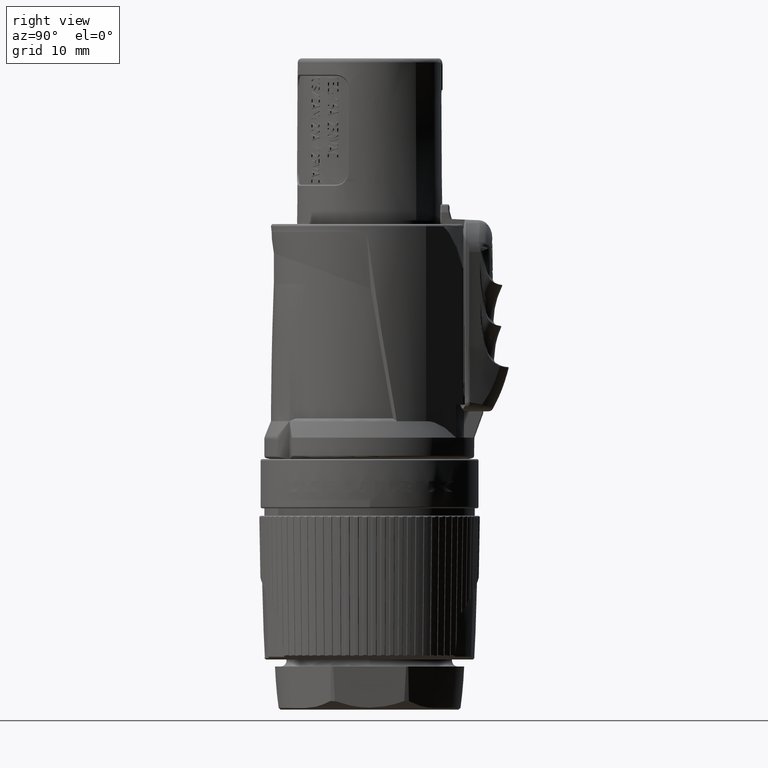
[diagram: clean part render]
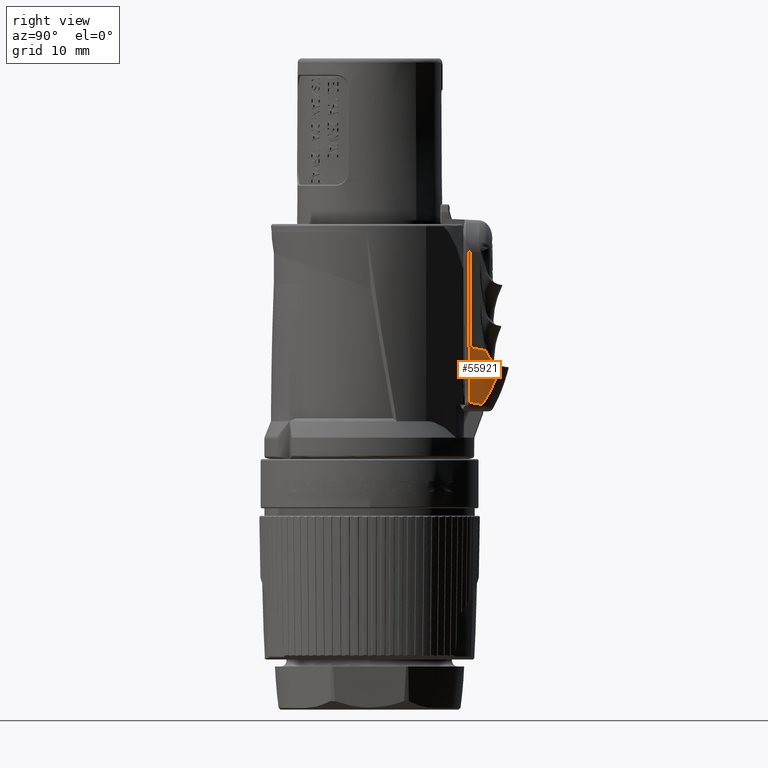
[diagram: same view with one face highlighted and labeled with its STEP entity id]
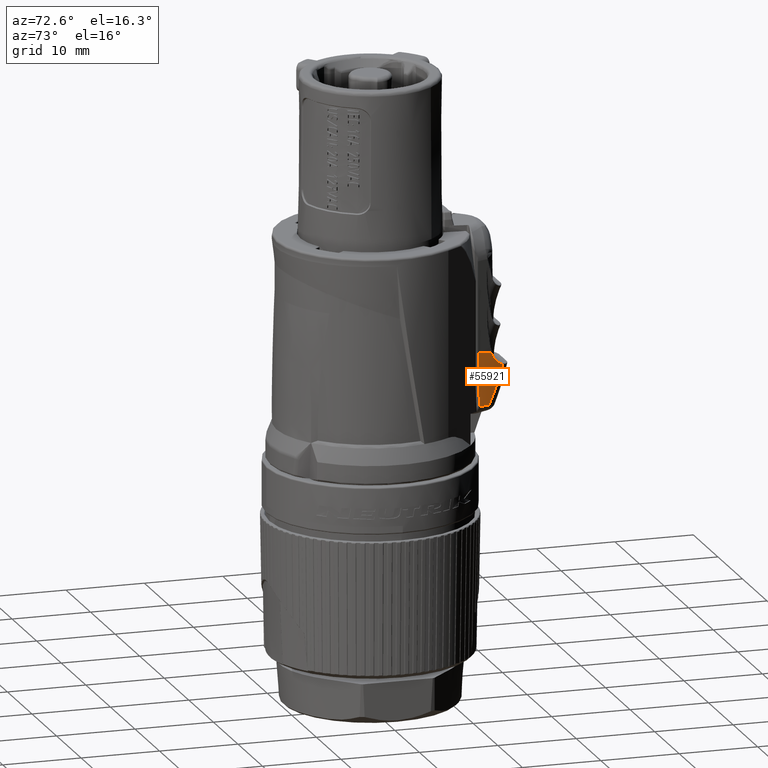
[diagram: same view with one face highlighted and labeled with its STEP entity id]
A machine part, right view. The second image highlights one B-rep face of the part: STEP entity #55921.
A second angle (auxiliary view) of the same face is appended — the face is thin or edge-on in the first view.
In plain terms, the highlighted face is a freeform B-spline surface patch.
Its self-contained STEP definition (entity closure, byte-faithful):
#8972=CARTESIAN_POINT('',(5.137454435527E0,1.218043449051E1,2.828305651661E1));
#8973=CARTESIAN_POINT('',(5.032625257022E0,1.240478277706E1,2.823575987312E1));
#8974=CARTESIAN_POINT('',(4.823507306549E0,1.284837388219E1,2.814309061550E1));
#8975=CARTESIAN_POINT('',(4.528597723349E0,1.346463573722E1,2.801603205721E1));
#8976=CARTESIAN_POINT('',(4.312379997283E0,1.391025584645E1,2.792694888665E1));
#8977=CARTESIAN_POINT('',(4.201611974812E0,1.413675192937E1,2.788168511465E1));
#8979=CARTESIAN_POINT('',(4.201611974812E0,1.413675192937E1,2.788168511465E1));
#8980=CARTESIAN_POINT('',(4.170627954426E0,1.418489630986E1,2.773186646039E1));
#8981=CARTESIAN_POINT('',(4.101447117099E0,1.429892807351E1,2.746028612217E1));
#8982=CARTESIAN_POINT('',(3.989970513082E0,1.449047511131E1,2.713326832320E1));
#8983=CARTESIAN_POINT('',(3.875976783093E0,1.468969617786E1,2.686938387784E1));
#8984=CARTESIAN_POINT('',(3.763663672099E0,1.488737683183E1,2.665655979653E1));
#8985=CARTESIAN_POINT('',(3.655378751096E0,1.507862143851E1,2.648463868363E1));
#8986=CARTESIAN_POINT('',(3.552893713565E0,1.525999276944E1,2.634608025967E1));
#8987=CARTESIAN_POINT('',(3.456845172929E0,1.543026117711E1,2.623419367185E1));
#8988=CARTESIAN_POINT('',(3.367128336880E0,1.558958793816E1,2.614346496403E1));
#8989=CARTESIAN_POINT('',(3.283295984391E0,1.573876606117E1,2.606951144149E1));
#8990=CARTESIAN_POINT('',(3.230256874929E0,1.583337159726E1,2.602869407203E1));
#8991=CARTESIAN_POINT('',(3.204623298536E0,1.587915455899E1,2.601021241512E1));
#8993=CARTESIAN_POINT('',(3.204623298536E0,1.587915455899E1,2.601021241512E1));
#8994=CARTESIAN_POINT('',(3.213581124219E0,1.584505366982E1,2.588340318956E1));
#8995=CARTESIAN_POINT('',(3.234597608046E0,1.577423201581E1,2.563237481375E1));
#8996=CARTESIAN_POINT('',(3.275277367365E0,1.566050471906E1,2.526388454083E1));
#8997=CARTESIAN_POINT('',(3.325068005909E0,1.553934317633E1,2.490280440898E1));
#8998=CARTESIAN_POINT('',(3.383939626624E0,1.541083790349E1,2.454878009841E1));
#8999=CARTESIAN_POINT('',(3.451896321271E0,1.527503074429E1,2.420144864807E1));
#9000=CARTESIAN_POINT('',(3.528974187518E0,1.513192874512E1,2.386048280055E1));
#9001=CARTESIAN_POINT('',(3.615242437341E0,1.498150210194E1,2.352557825443E1));
#9002=CARTESIAN_POINT('',(3.710800236076E0,1.482369170631E1,2.319646907986E1));
#9003=CARTESIAN_POINT('',(3.815775845007E0,1.465841044852E1,2.287292544493E1));
#9004=CARTESIAN_POINT('',(3.930329560126E0,1.448553931071E1,2.255474398667E1));
#9005=CARTESIAN_POINT('',(4.054651327845E0,1.430493156844E1,2.224175529652E1));
#9006=CARTESIAN_POINT('',(4.188958620457E0,1.411641731279E1,2.193382853929E1));
#9007=CARTESIAN_POINT('',(4.333472817482E0,1.391983131640E1,2.163090840900E1));
#9008=CARTESIAN_POINT('',(4.436877966331E0,1.378314628828E1,2.143211697407E1));
#9009=CARTESIAN_POINT('',(4.490360090372E0,1.371340410955E1,2.133357328039E1));
#9011=CARTESIAN_POINT('',(4.490360090372E0,1.371340410955E1,2.133357328039E1));
#9012=CARTESIAN_POINT('',(4.550881939896E0,1.362149830925E1,2.135222668004E1));
#9013=CARTESIAN_POINT('',(4.673881053086E0,1.343497064355E1,2.138505773771E1));
#9014=CARTESIAN_POINT('',(4.875232013923E0,1.312988490549E1,2.143082369902E1));
#9015=CARTESIAN_POINT('',(5.056133166179E0,1.285455601999E1,2.147737359850E1));
#9016=CARTESIAN_POINT('',(5.216193454565E0,1.260933630053E1,2.152598307596E1));
#9017=CARTESIAN_POINT('',(5.358629014933E0,1.239114131899E1,2.156543413160E1));
#9018=CARTESIAN_POINT('',(5.443581219444E0,1.226184256511E1,2.158230021186E1));
#9019=CARTESIAN_POINT('',(5.483465134599E0,1.220138692596E1,2.158862640010E1));
#9021=CARTESIAN_POINT('',(5.481564126913E0,1.220076209789E1,2.160987701687E1));
#9022=CARTESIAN_POINT('',(5.481938826177E0,1.220077065566E1,2.160638775249E1));
#9023=CARTESIAN_POINT('',(5.482599345E0,1.220092782246E1,2.159936548813E1));
#9024=CARTESIAN_POINT('',(5.483206315845E0,1.220118679236E1,2.159222110348E1));
#9025=CARTESIAN_POINT('',(5.483465134599E0,1.220138692596E1,2.158862640010E1));
#9027=CARTESIAN_POINT('',(5.481564126913E0,1.220076209789E1,2.160987701687E1));
#9028=CARTESIAN_POINT('',(5.412492959283E0,1.219923087520E1,2.225280989920E1));
#9029=CARTESIAN_POINT('',(5.288525488787E0,1.219577780597E1,2.360436967145E1));
#9030=CARTESIAN_POINT('',(5.164212534124E0,1.218926873095E1,2.579662223070E1));
#9031=CARTESIAN_POINT('',(5.134152171946E0,1.218363027664E1,2.742955192651E1));
#9032=CARTESIAN_POINT('',(5.137454435527E0,1.218043449051E1,2.828305651661E1));
#9565=CARTESIAN_POINT('',(5.137454435527E0,1.218043449051E1,2.828305651661E1));
#13887=CARTESIAN_POINT('',(4.490360090372E0,1.371340410955E1,2.133357328039E1));
#13889=CARTESIAN_POINT('',(3.204623298536E0,1.587915455899E1,2.601021241512E1));
#42304=VERTEX_POINT('',#13887);
#42313=VERTEX_POINT('',#9019);
#42318=CARTESIAN_POINT('',(5.481564823176E0,1.220076210723E1,2.160987182860E1));
#42319=VERTEX_POINT('',#42318);
#42394=VERTEX_POINT('',#13889);
#42395=VERTEX_POINT('',#9565);
#42446=VERTEX_POINT('',#8977);
#55891=CARTESIAN_POINT('',(3.045823140511E0,1.587915455861E1,2.116774453993E1));
#55892=CARTESIAN_POINT('',(3.030766645735E0,1.587915455861E1,2.355834589005E1));
#55893=CARTESIAN_POINT('',(3.153817374832E0,1.587915455861E1,2.593515800004E1));
#55894=CARTESIAN_POINT('',(3.410840440002E0,1.587915455861E1,2.828257106556E1));
#55895=CARTESIAN_POINT('',(3.868161245673E0,1.464624795954E1,2.126214665078E1));
#55896=CARTESIAN_POINT('',(3.773174033266E0,1.464624795954E1,2.361190744297E1));
#55897=CARTESIAN_POINT('',(3.813416138407E0,1.464624795954E1,2.595721739014E1));
#55898=CARTESIAN_POINT('',(3.986378400897E0,1.464624795954E1,2.828273347388E1));
#55899=CARTESIAN_POINT('',(4.690499350835E0,1.341334136047E1,2.135654876162E1));
#55900=CARTESIAN_POINT('',(4.515581420797E0,1.341334136047E1,2.366546899588E1));
#55901=CARTESIAN_POINT('',(4.473014901982E0,1.341334136047E1,2.597927678024E1));
#55902=CARTESIAN_POINT('',(4.561916361792E0,1.341334136047E1,2.828289588220E1));
#55903=CARTESIAN_POINT('',(5.512837455997E0,1.218043476140E1,2.145095087247E1));
#55904=CARTESIAN_POINT('',(5.257988808327E0,1.218043476140E1,2.371903054880E1));
#55905=CARTESIAN_POINT('',(5.132613665557E0,1.218043476140E1,2.600133617035E1));
#55906=CARTESIAN_POINT('',(5.137454322688E0,1.218043476140E1,2.828305829052E1));
#55907=B_SPLINE_SURFACE_WITH_KNOTS('',3,3,((#55891,#55892,#55893,#55894),
(#55895,#55896,#55897,#55898),(#55899,#55900,#55901,#55902),(#55903,#55904,
#55905,#55906)),.UNSPECIFIED.,.F.,.F.,.F.,(4,4),(4,4),(3.701409068991E-1,
9.865942064337E-1),(1.607211181508E-2,1.300867944666E-1),.UNSPECIFIED.);
#55908=ORIENTED_EDGE('',*,*,#55877,.T.);
#55910=ORIENTED_EDGE('',*,*,#55909,.T.);
#55912=ORIENTED_EDGE('',*,*,#55911,.T.);
#55914=ORIENTED_EDGE('',*,*,#55913,.T.);
#55916=ORIENTED_EDGE('',*,*,#55915,.F.);
#55918=ORIENTED_EDGE('',*,*,#55917,.T.);
#55919=EDGE_LOOP('',(#55908,#55910,#55912,#55914,#55916,#55918));
#55920=FACE_OUTER_BOUND('',#55919,.F.);
#55921=ADVANCED_FACE('',(#55920),#55907,.F.);
#8978=B_SPLINE_CURVE_WITH_KNOTS('',3,(#8972,#8973,#8974,#8975,#8976,#8977),
.UNSPECIFIED.,.F.,.F.,(4,1,1,4),(0.E0,3.333333333333E-1,6.666666666667E-1,1.E0),
.UNSPECIFIED.);
#8992=B_SPLINE_CURVE_WITH_KNOTS('',3,(#8979,#8980,#8981,#8982,#8983,#8984,#8985,
#8986,#8987,#8988,#8989,#8990,#8991),.UNSPECIFIED.,.F.,.F.,(4,1,1,1,1,1,1,1,1,1,
4),(0.E0,1.E-1,2.E-1,3.E-1,4.E-1,5.E-1,6.E-1,7.E-1,8.E-1,9.E-1,1.E0),
.UNSPECIFIED.);
#9010=B_SPLINE_CURVE_WITH_KNOTS('',3,(#8993,#8994,#8995,#8996,#8997,#8998,#8999,
#9000,#9001,#9002,#9003,#9004,#9005,#9006,#9007,#9008,#9009),.UNSPECIFIED.,.F.,
.F.,(4,1,1,1,1,1,1,1,1,1,1,1,1,1,4),(0.E0,7.142857142857E-2,1.428571428571E-1,
2.142857142857E-1,2.857142857143E-1,3.571428571429E-1,4.285714285714E-1,5.E-1,
5.714285714286E-1,6.428571428571E-1,7.142857142857E-1,7.857142857143E-1,
8.571428571429E-1,9.285714285714E-1,1.E0),.UNSPECIFIED.);
#9020=B_SPLINE_CURVE_WITH_KNOTS('',3,(#9011,#9012,#9013,#9014,#9015,#9016,#9017,
#9018,#9019),.UNSPECIFIED.,.F.,.F.,(4,1,1,1,1,1,4),(0.E0,1.666666666667E-1,
3.333333333333E-1,5.E-1,6.666666666667E-1,8.333333333333E-1,1.E0),
.UNSPECIFIED.);
#9026=B_SPLINE_CURVE_WITH_KNOTS('',3,(#9021,#9022,#9023,#9024,#9025),
.UNSPECIFIED.,.F.,.F.,(4,1,4),(0.E0,5.E-1,1.E0),.UNSPECIFIED.);
#9033=B_SPLINE_CURVE_WITH_KNOTS('',3,(#9027,#9028,#9029,#9030,#9031,#9032),
.UNSPECIFIED.,.F.,.F.,(4,1,1,4),(0.E0,3.333333333333E-1,6.666666666667E-1,1.E0),
.UNSPECIFIED.);
#55877=EDGE_CURVE('',#42395,#42446,#8978,.T.);
#55909=EDGE_CURVE('',#42446,#42394,#8992,.T.);
#55911=EDGE_CURVE('',#42394,#42304,#9010,.T.);
#55913=EDGE_CURVE('',#42304,#42313,#9020,.T.);
#55915=EDGE_CURVE('',#42319,#42313,#9026,.T.);
#55917=EDGE_CURVE('',#42319,#42395,#9033,.T.);